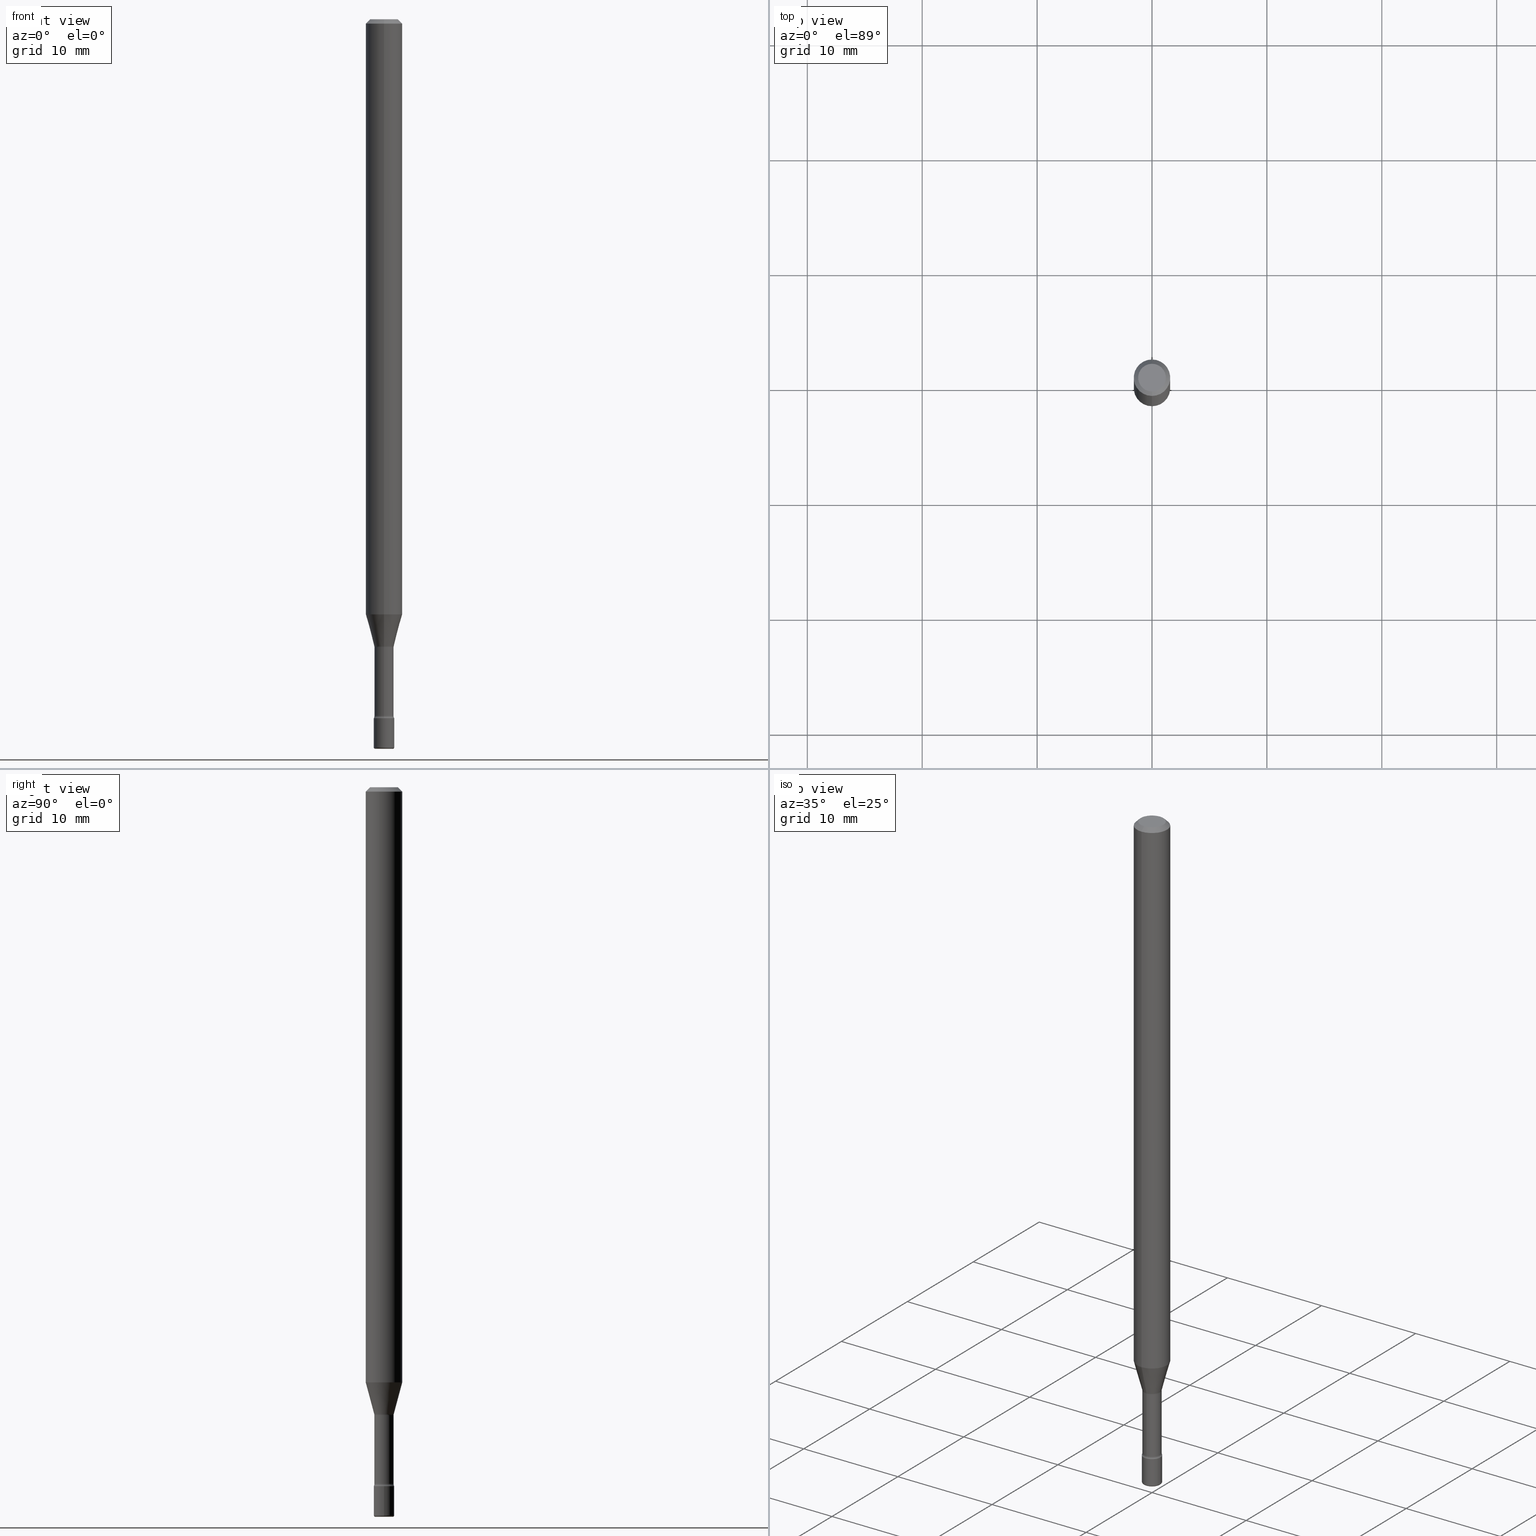
[diagram: canonical four-view strip — front | top / right | iso, engineering-drawing reading convention]
A machine part, canonical four-view strip (front | top / right | iso — engineering-drawing reading convention). The complete STEP part file that produces these views, byte-faithful:
ISO-10303-21;
HEADER;
FILE_DESCRIPTION (( 'STEP AP203' ),
    '1' );
FILE_NAME ('08932.STEP',
    '2024-03-06T20:11:24',
    ( '' ),
    ( '' ),
    'SwSTEP 2.0',
    'SolidWorks 2023',
    '' );
FILE_SCHEMA (( 'CONFIG_CONTROL_DESIGN' ));
ENDSEC;

DATA;
#1 = ORIENTED_EDGE ( 'NONE', *, *, #347, .T. ) ;
#2 = DIRECTION ( 'NONE',  ( -1.000000000000000000, 6.982962677686265922E-15, -4.876176775795935793E-29 ) ) ;
#3 = CIRCLE ( 'NONE', #239, 0.03289999999999999869 ) ;
#4 = AXIS2_PLACEMENT_3D ( 'NONE', #566, #52, #317 ) ;
#5 = DIRECTION ( 'NONE',  ( 1.000000000000000000, -6.982962677686265922E-15, 4.876176775795936353E-29 ) ) ;
#6 = DIRECTION ( 'NONE',  ( -6.982962677686265922E-15, -1.000000000000000000, 3.483106191921935554E-15 ) ) ;
#7 = ORIENTED_EDGE ( 'NONE', *, *, #525, .T. ) ;
#8 = MECHANICAL_CONTEXT ( 'NONE', #528, 'mechanical' ) ;
#9 = ADVANCED_FACE ( 'NONE', ( #275 ), #232, .T. ) ;
#10 = DATE_AND_TIME ( #238, #62 ) ;
#11 = AXIS2_PLACEMENT_3D ( 'NONE', #478, #143, #313 ) ;
#12 = AXIS2_PLACEMENT_3D ( 'NONE', #299, #218, #261 ) ;
#13 = TOROIDAL_SURFACE ( 'NONE', #269, 0.04790000000000001895, 0.01499999999999993006 ) ;
#14 = ORIENTED_EDGE ( 'NONE', *, *, #271, .F. ) ;
#15 = DATE_TIME_ROLE ( 'classification_date' ) ;
#16 = DIRECTION ( 'NONE',  ( 6.982962677686265922E-15, 1.000000000000000000, -3.483106191921935554E-15 ) ) ;
#17 = EDGE_CURVE ( 'NONE', #179, #512, #343, .T. ) ;
#18 = ORIENTED_EDGE ( 'NONE', *, *, #251, .F. ) ;
#19 = ORIENTED_EDGE ( 'NONE', *, *, #421, .F. ) ;
#20 = VERTEX_POINT ( 'NONE', #406 ) ;
#21 = CARTESIAN_POINT ( 'NONE',  ( 3.668042894305739311E-31, -5.237451588429154292E-17, -0.01500000000000002720 ) ) ;
#22 = FACE_OUTER_BOUND ( 'NONE', #456, .T. ) ;
#23 = AXIS2_PLACEMENT_3D ( 'NONE', #316, #447, #451 ) ;
#24 = AXIS2_PLACEMENT_3D ( 'NONE', #297, #293, #83 ) ;
#25 = EDGE_CURVE ( 'NONE', #490, #365, #488, .T. ) ;
#26 = ORIENTED_EDGE ( 'NONE', *, *, #538, .T. ) ;
#27 = ORIENTED_EDGE ( 'NONE', *, *, #244, .F. ) ;
#28 = DIRECTION ( 'NONE',  ( -6.982962677686266711E-15, -1.000000000000000000, 0.000000000000000000 ) ) ;
#29 = ORIENTED_EDGE ( 'NONE', *, *, #347, .F. ) ;
#30 = ORIENTED_EDGE ( 'NONE', *, *, #407, .F. ) ;
#31 = CARTESIAN_POINT ( 'NONE',  ( 5.837924017228111976E-29, -8.335737966594106856E-15, -2.387345589506696619 ) ) ;
#32 = AXIS2_PLACEMENT_3D ( 'NONE', #439, #570, #5 ) ;
#33 = VECTOR ( 'NONE', #396, 39.37007874015749564 ) ;
#34 = DIRECTION ( 'NONE',  ( -6.982962677686265133E-15, -1.000000000000000000, 3.491634392286094348E-15 ) ) ;
#35 = EDGE_CURVE ( 'NONE', #301, #20, #392, .T. ) ;
#36 = CARTESIAN_POINT ( 'NONE',  ( 6.113672015462840371E-29, -8.728703347107863365E-15, -2.499999999999999556 ) ) ;
#37 = PRODUCT ( '08932', '08932', '', ( #8 ) ) ;
#38 = DIRECTION ( 'NONE',  ( 6.982962677686265922E-15, 1.000000000000000000, -3.491634392286096321E-15 ) ) ;
#39 = ORIENTED_EDGE ( 'NONE', *, *, #370, .T. ) ;
#40 = EDGE_LOOP ( 'NONE', ( #350, #376, #305, #213 ) ) ;
#41 = AXIS2_PLACEMENT_3D ( 'NONE', #128, #220, #504 ) ;
#42 = LINE ( 'NONE', #56, #33 ) ;
#43 = EDGE_CURVE ( 'NONE', #442, #365, #118, .T. ) ;
#44 = ORIENTED_EDGE ( 'NONE', *, *, #35, .T. ) ;
#45 = ORIENTED_EDGE ( 'NONE', *, *, #520, .T. ) ;
#46 = LINE ( 'NONE', #349, #437 ) ;
#47 = ORIENTED_EDGE ( 'NONE', *, *, #340, .T. ) ;
#48 = CARTESIAN_POINT ( 'NONE',  ( 0.000000000000000000, 0.000000000000000000, 0.000000000000000000 ) ) ;
#49 = EDGE_LOOP ( 'NONE', ( #44, #494 ) ) ;
#50 = DIRECTION ( 'NONE',  ( 1.000000000000000000, -6.982962677686239889E-15, 4.883557194083103933E-29 ) ) ;
#51 = DIRECTION ( 'NONE',  ( -6.982962677686266711E-15, -1.000000000000000000, 0.000000000000000000 ) ) ;
#52 = DIRECTION ( 'NONE',  ( 1.000000000000000000, -7.105427357601001070E-15, 4.926317382906172649E-29 ) ) ;
#53 = DIRECTION ( 'NONE',  ( -6.982962677686265922E-15, -1.000000000000000000, 3.491634392286095926E-15 ) ) ;
#54 = TOROIDAL_SURFACE ( 'NONE', #374, 0.04789999999999999813, 0.01500000000000001853 ) ;
#55 = ADVANCED_FACE ( 'NONE', ( #182 ), #443, .T. ) ;
#56 = CARTESIAN_POINT ( 'NONE',  ( -2.333085523452721840E-16, -0.03341111260567147800, -2.148092501787273179 ) ) ;
#57 =( LENGTH_UNIT ( ) NAMED_UNIT ( * ) SI_UNIT ( $, .METRE. ) );
#58 = LENGTH_MEASURE_WITH_UNIT ( LENGTH_MEASURE( 0.02539999999999999897 ), #57 );
#59 = ADVANCED_FACE ( 'NONE', ( #400 ), #310, .F. ) ;
#60 = CARTESIAN_POINT ( 'NONE',  ( 3.668042894305739311E-31, -5.237451588429154292E-17, -0.01500000000000002720 ) ) ;
#61 = AXIS2_PLACEMENT_3D ( 'NONE', #492, #137, #272 ) ;
#62 = LOCAL_TIME ( 15, 11, 24.00000000000000000, #460 ) ;
#63 = APPROVAL_STATUS ( 'not_yet_approved' ) ;
#64 = CARTESIAN_POINT ( 'NONE',  ( 5.252863624994821305E-29, -7.500353657052325597E-15, -2.148092501787273179 ) ) ;
#65 = PLANE ( 'NONE',  #150 ) ;
#66 = VERTEX_POINT ( 'NONE', #92 ) ;
#67 = APPROVAL_ROLE ( '' ) ;
#68 = PLANE ( 'NONE',  #79 ) ;
#69 = AXIS2_PLACEMENT_3D ( 'NONE', #48, #441, #193 ) ;
#70 = AXIS2_PLACEMENT_3D ( 'NONE', #479, #481, #568 ) ;
#71 = FACE_OUTER_BOUND ( 'NONE', #307, .T. ) ;
#72 = ORIENTED_EDGE ( 'NONE', *, *, #262, .F. ) ;
#73 = CARTESIAN_POINT ( 'NONE',  ( -0.03000000000000000583, -8.498083119685618084E-15, -2.495000000000000107 ) ) ;
#74 = VERTEX_POINT ( 'NONE', #135 ) ;
#75 = ORIENTED_EDGE ( 'NONE', *, *, #43, .F. ) ;
#76 = DIRECTION ( 'NONE',  ( -2.445361929537154917E-29, 3.491634392286096321E-15, 1.000000000000000000 ) ) ;
#77 = EDGE_CURVE ( 'NONE', #480, #515, #380, .T. ) ;
#78 = ORIENTED_EDGE ( 'NONE', *, *, #43, .T. ) ;
#79 = AXIS2_PLACEMENT_3D ( 'NONE', #315, #388, #2 ) ;
#80 = AXIS2_PLACEMENT_3D ( 'NONE', #471, #76, #34 ) ;
#81 = CARTESIAN_POINT ( 'NONE',  ( -2.444036937189605549E-16, -0.03500000000000832306, -2.395000000000000018 ) ) ;
#82 = ORIENTED_EDGE ( 'NONE', *, *, #25, .T. ) ;
#83 = DIRECTION ( 'NONE',  ( 1.000000000000000000, -6.982962677686248567E-15, 0.000000000000000000 ) ) ;
#84 = EDGE_CURVE ( 'NONE', #551, #99, #101, .T. ) ;
#85 = PRODUCT_DEFINITION_SHAPE ( 'NONE', 'NONE',  #265 ) ;
#86 = CARTESIAN_POINT ( 'NONE',  ( -1.169113584055446105E-44, 1.669184350826100908E-30, 4.780733988912460139E-16 ) ) ;
#87 = EDGE_LOOP ( 'NONE', ( #472, #409, #452, #75 ) ) ;
#88 = AXIS2_PLACEMENT_3D ( 'NONE', #60, #242, #16 ) ;
#89 = VECTOR ( 'NONE', #445, 39.37007874015748143 ) ;
#90 = CIRCLE ( 'NONE', #70, 0.03341111260566397706 ) ;
#91 = DIRECTION ( 'NONE',  ( -2.445468806185136597E-29, 3.491481338843145583E-15, 1.000000000000000000 ) ) ;
#92 = CARTESIAN_POINT ( 'NONE',  ( -4.364351673553912750E-16, -0.06250000000000005551, -0.01499999999999981036 ) ) ;
#93 = ORIENTED_EDGE ( 'NONE', *, *, #538, .F. ) ;
#94 = CARTESIAN_POINT ( 'NONE',  ( 6.617399431615516844E-46, -9.463332413969183730E-32, -2.708191715859933263E-17 ) ) ;
#95 = CYLINDRICAL_SURFACE ( 'NONE', #527, 0.06250000000000000000 ) ;
#96 = ORIENTED_EDGE ( 'NONE', *, *, #303, .T. ) ;
#97 = ADVANCED_FACE ( 'NONE', ( #22 ), #68, .T. ) ;
#98 = DIRECTION ( 'NONE',  ( -6.982962677686266711E-15, -1.000000000000000000, 3.491481338843145583E-15 ) ) ;
#99 = VERTEX_POINT ( 'NONE', #192 ) ;
#100 = CARTESIAN_POINT ( 'NONE',  ( -4.364351673553419219E-16, -0.06250000000000714706, -2.039531296095961732 ) ) ;
#101 = CIRCLE ( 'NONE', #131, 0.06250000000000000000 ) ;
#102 = AXIS2_PLACEMENT_3D ( 'NONE', #532, #186, #229 ) ;
#103 = ADVANCED_FACE ( 'NONE', ( #521 ), #355, .T. ) ;
#104 = EDGE_LOOP ( 'NONE', ( #162, #206 ) ) ;
#105 = DATE_TIME_ROLE ( 'creation_date' ) ;
#106 = CARTESIAN_POINT ( 'NONE',  ( 5.856897790813402508E-29, -8.362097806529333416E-15, -2.395000000000000018 ) ) ;
#107 = ADVANCED_FACE ( 'NONE', ( #160 ), #249, .T. ) ;
#108 = PERSON ( 'UNSPECIFIED', 'UNSPECIFIED', 'UNSPECIFIED', ('UNSPECIFIED'), ('UNSPECIFIED'), ('UNSPECIFIED') ) ;
#109 = APPLICATION_PROTOCOL_DEFINITION ( 'international standard', 'config_control_design', 1994, #129 ) ;
#110 = APPROVAL ( #63, 'UNSPECIFIED' ) ;
#111 = AXIS2_PLACEMENT_3D ( 'NONE', #153, #357, #321 ) ;
#112 = APPROVAL_PERSON_ORGANIZATION ( #371, #397, #495 ) ;
#113 = PERSON_AND_ORGANIZATION_ROLE ( 'design_owner' ) ;
#114 = EDGE_LOOP ( 'NONE', ( #30, #420, #289, #470 ) ) ;
#115 =( NAMED_UNIT ( * ) PLANE_ANGLE_UNIT ( ) SI_UNIT ( $, .RADIAN. ) );
#116 = ORIENTED_EDGE ( 'NONE', *, *, #271, .T. ) ;
#117 = CARTESIAN_POINT ( 'NONE',  ( 5.252863624994821305E-29, -7.500353657052325597E-15, -2.148092501787273179 ) ) ;
#118 = CIRCLE ( 'NONE', #267, 0.03289999999999999869 ) ;
#119 = CIRCLE ( 'NONE', #319, 0.01499999999999992485 ) ;
#120 = ORIENTED_EDGE ( 'NONE', *, *, #185, .F. ) ;
#121 = LINE ( 'NONE', #342, #215 ) ;
#122 = CARTESIAN_POINT ( 'NONE',  ( 5.262357218587814766E-29, -7.513909179241206532E-15, -2.151974787463811101 ) ) ;
#123 = ORIENTED_EDGE ( 'NONE', *, *, #17, .T. ) ;
#124 = SHAPE_DEFINITION_REPRESENTATION ( #85, #533 ) ;
#125 = ORIENTED_EDGE ( 'NONE', *, *, #520, .F. ) ;
#126 = ADVANCED_FACE ( 'NONE', ( #260 ), #189, .F. ) ;
#127 = DIRECTION ( 'NONE',  ( 6.982962677686265922E-15, 1.000000000000000000, -3.483106191921935554E-15 ) ) ;
#128 = CARTESIAN_POINT ( 'NONE',  ( 5.837924017228111976E-29, -8.335737966594106856E-15, -2.387345589506696619 ) ) ;
#129 = APPLICATION_CONTEXT ( 'configuration controlled 3d designs of mechanical parts and assemblies' ) ;
#130 = LINE ( 'NONE', #302, #499 ) ;
#131 = AXIS2_PLACEMENT_3D ( 'NONE', #385, #561, #178 ) ;
#132 = DIRECTION ( 'NONE',  ( 1.000000000000000000, -6.982962677686299054E-15, 0.000000000000000000 ) ) ;
#133 = ADVANCED_FACE ( 'NONE', ( #183 ), #95, .T. ) ;
#134 = CYLINDRICAL_SURFACE ( 'NONE', #295, 0.03290000000000004726 ) ;
#135 = CARTESIAN_POINT ( 'NONE',  ( 3.407447217031688177E-16, 0.03341111260565647612, -2.148092501787273179 ) ) ;
#136 = LINE ( 'NONE', #233, #89 ) ;
#137 = DIRECTION ( 'NONE',  ( -2.445468806185136597E-29, 3.491481338843145583E-15, 1.000000000000000000 ) ) ;
#138 = ORIENTED_EDGE ( 'NONE', *, *, #463, .F. ) ;
#139 = CIRCLE ( 'NONE', #453, 0.06250000000000000000 ) ;
#140 = PRODUCT_DEFINITION_FORMATION_WITH_SPECIFIED_SOURCE ( 'ANY', '', #37, .NOT_KNOWN. ) ;
#141 = DIRECTION ( 'NONE',  ( -2.445468806185136597E-29, 3.491481338843145583E-15, 1.000000000000000000 ) ) ;
#142 = FACE_OUTER_BOUND ( 'NONE', #513, .T. ) ;
#143 = DIRECTION ( 'NONE',  ( -2.445361929537154917E-29, 3.491634392286096321E-15, 1.000000000000000000 ) ) ;
#144 = LINE ( 'NONE', #241, #171 ) ;
#145 = DIRECTION ( 'NONE',  ( -2.445361929537154917E-29, 3.491634392286096321E-15, 1.000000000000000000 ) ) ;
#146 = ORIENTED_EDGE ( 'NONE', *, *, #407, .T. ) ;
#147 = ORIENTED_EDGE ( 'NONE', *, *, #390, .T. ) ;
#148 = PERSON_AND_ORGANIZATION ( #108, #375 ) ;
#149 = CLOSED_SHELL ( 'NONE', ( #9, #468, #188, #97, #506, #211 ) ) ;
#150 = AXIS2_PLACEMENT_3D ( 'NONE', #246, #549, #503 ) ;
#151 = APPROVAL_PERSON_ORGANIZATION ( #418, #168, #455 ) ;
#152 = ADVANCED_FACE ( 'NONE', ( #446 ), #332, .T. ) ;
#153 = CARTESIAN_POINT ( 'NONE',  ( -3.344839122611194574E-16, -0.04790000000000750602, -2.151974787463811101 ) ) ;
#154 = PERSON_AND_ORGANIZATION_ROLE ( 'design_supplier' ) ;
#155 = ORIENTED_EDGE ( 'NONE', *, *, #390, .F. ) ;
#156 = APPROVAL_STATUS ( 'not_yet_approved' ) ;
#157 = ORIENTED_EDGE ( 'NONE', *, *, #309, .T. ) ;
#158 = PERSON_AND_ORGANIZATION ( #108, #375 ) ;
#159 = AXIS2_PLACEMENT_3D ( 'NONE', #369, #540, #417 ) ;
#160 = FACE_OUTER_BOUND ( 'NONE', #114, .T. ) ;
#161 = CC_DESIGN_SECURITY_CLASSIFICATION ( #353, ( #140 ) ) ;
#162 = ORIENTED_EDGE ( 'NONE', *, *, #287, .F. ) ;
#163 = APPROVAL_STATUS ( 'not_yet_approved' ) ;
#164 = ADVANCED_FACE ( 'NONE', ( #544 ), #507, .F. ) ;
#165 = FACE_OUTER_BOUND ( 'NONE', #175, .T. ) ;
#166 = COORDINATED_UNIVERSAL_TIME_OFFSET ( 5, 0, .BEHIND. ) ;
#167 = DIRECTION ( 'NONE',  ( -2.445468806185136597E-29, 3.491481338843145583E-15, 1.000000000000000000 ) ) ;
#168 = APPROVAL ( #163, 'UNSPECIFIED' ) ;
#169 = VERTEX_POINT ( 'NONE', #201 ) ;
#170 = CARTESIAN_POINT ( 'NONE',  ( -0.03500000000000000333, 2.486899575160350887E-16, -1.721627281589217108E-30 ) ) ;
#171 = VECTOR ( 'NONE', #433, 39.37007874015748143 ) ;
#172 = ORIENTED_EDGE ( 'NONE', *, *, #77, .F. ) ;
#173 = AXIS2_PLACEMENT_3D ( 'NONE', #187, #91, #50 ) ;
#174 = EDGE_CURVE ( 'NONE', #20, #301, #325, .T. ) ;
#175 = EDGE_LOOP ( 'NONE', ( #14, #39, #248, #235 ) ) ;
#176 = CARTESIAN_POINT ( 'NONE',  ( 0.03500000000000000333, -8.606501500248353382E-15, -2.395000000000000018 ) ) ;
#177 = FACE_OUTER_BOUND ( 'NONE', #501, .T. ) ;
#178 = DIRECTION ( 'NONE',  ( -6.982962677686265922E-15, -1.000000000000000000, 4.370956789862821150E-15 ) ) ;
#179 = VERTEX_POINT ( 'NONE', #505 ) ;
#180 = DIRECTION ( 'NONE',  ( -2.445468806185136597E-29, 3.491481338843145583E-15, 1.000000000000000000 ) ) ;
#181 = AXIS2_PLACEMENT_3D ( 'NONE', #195, #360, #534 ) ;
#182 = FACE_OUTER_BOUND ( 'NONE', #558, .T. ) ;
#183 = FACE_OUTER_BOUND ( 'NONE', #329, .T. ) ;
#184 = DIRECTION ( 'NONE',  ( -2.445361929537154917E-29, 3.491634392286096321E-15, 1.000000000000000000 ) ) ;
#185 = EDGE_CURVE ( 'NONE', #365, #442, #3, .T. ) ;
#186 = DIRECTION ( 'NONE',  ( 1.000000000000000000, -7.105427357601001070E-15, 4.926317382906172649E-29 ) ) ;
#187 = CARTESIAN_POINT ( 'NONE',  ( 6.101444671431915719E-29, -8.711245940413648329E-15, -2.495000000000000107 ) ) ;
#188 = ADVANCED_FACE ( 'NONE', ( #377 ), #65, .T. ) ;
#189 = TOROIDAL_SURFACE ( 'NONE', #23, 0.04790000000000001895, 0.01499999999999993006 ) ;
#190 = LOCAL_TIME ( 15, 11, 24.00000000000000000, #166 ) ;
#191 = FACE_OUTER_BOUND ( 'NONE', #336, .T. ) ;
#192 = CARTESIAN_POINT ( 'NONE',  ( 4.440892098501122158E-16, 0.06249999999999284600, -2.039531296095962176 ) ) ;
#193 = DIRECTION ( 'NONE',  ( 1.000000000000000000, -6.982962677686265922E-15, 4.876176775795936353E-29 ) ) ;
#194 = DIRECTION ( 'NONE',  ( -2.445361929537154917E-29, 3.491634392286096321E-15, 1.000000000000000000 ) ) ;
#195 = CARTESIAN_POINT ( 'NONE',  ( 6.617399431615516844E-46, -9.463332413969183730E-32, -2.708191715859933263E-17 ) ) ;
#196 = APPROVAL_DATE_TIME ( #449, #110 ) ;
#197 = ADVANCED_FACE ( 'NONE', ( #462 ), #278, .T. ) ;
#198 = CARTESIAN_POINT ( 'NONE',  ( 5.262587214439640065E-29, -7.513579812090841259E-15, -2.151974787463811101 ) ) ;
#199 = PRODUCT_RELATED_PRODUCT_CATEGORY ( 'detail', '', ( #37 ) ) ;
#200 = DIRECTION ( 'NONE',  ( 0.000000000000000000, 0.000000000000000000, 1.000000000000000000 ) ) ;
#201 = CARTESIAN_POINT ( 'NONE',  ( 2.486899575160932672E-16, 0.03499999999999160033, -2.395000000000000018 ) ) ;
#202 = CIRCLE ( 'NONE', #519, 0.06250000000000000000 ) ;
#203 = PERSON_AND_ORGANIZATION ( #108, #375 ) ;
#204 = ORIENTED_EDGE ( 'NONE', *, *, #303, .F. ) ;
#205 = ORIENTED_EDGE ( 'NONE', *, *, #185, .T. ) ;
#206 = ORIENTED_EDGE ( 'NONE', *, *, #525, .F. ) ;
#207 = EDGE_CURVE ( 'NONE', #99, #339, #320, .T. ) ;
#208 = VECTOR ( 'NONE', #308, 39.37007874015748143 ) ;
#209 = EDGE_LOOP ( 'NONE', ( #125, #138, #82, #205 ) ) ;
#210 = CYLINDRICAL_SURFACE ( 'NONE', #80, 0.03290000000000004726 ) ;
#211 = ADVANCED_FACE ( 'NONE', ( #165 ), #401, .T. ) ;
#212 = ORIENTED_EDGE ( 'NONE', *, *, #383, .T. ) ;
#213 = ORIENTED_EDGE ( 'NONE', *, *, #489, .F. ) ;
#214 = DIRECTION ( 'NONE',  ( -2.445361929537154917E-29, 3.491634392286096321E-15, 1.000000000000000000 ) ) ;
#215 = VECTOR ( 'NONE', #432, 39.37007874015748143 ) ;
#216 = LOCAL_TIME ( 15, 11, 24.00000000000000000, #361 ) ;
#217 = DIRECTION ( 'NONE',  ( -6.982962677686265133E-15, -1.000000000000000000, 3.491634392286096321E-15 ) ) ;
#218 = DIRECTION ( 'NONE',  ( -2.445361929537154917E-29, 3.491634392286096321E-15, 1.000000000000000000 ) ) ;
#219 = EDGE_CURVE ( 'NONE', #512, #66, #144, .T. ) ;
#220 = DIRECTION ( 'NONE',  ( -2.445361929537154917E-29, 3.491634392286096321E-15, 1.000000000000000000 ) ) ;
#221 = AXIS2_PLACEMENT_3D ( 'NONE', #554, #180, #330 ) ;
#222 = AXIS2_PLACEMENT_3D ( 'NONE', #438, #270, #487 ) ;
#223 = CC_DESIGN_PERSON_AND_ORGANIZATION_ASSIGNMENT ( #546, #323, ( #265 ) ) ;
#224 = CARTESIAN_POINT ( 'NONE',  ( 5.838179168722291637E-29, -8.335372575132119928E-15, -2.387345589506696619 ) ) ;
#225 = ORIENTED_EDGE ( 'NONE', *, *, #17, .F. ) ;
#226 = LINE ( 'NONE', #394, #412 ) ;
#227 = ADVANCED_FACE ( 'NONE', ( #177 ), #563, .F. ) ;
#228 = CARTESIAN_POINT ( 'NONE',  ( 5.262357218587814766E-29, -7.513909179241206532E-15, -2.151974787463811101 ) ) ;
#229 = DIRECTION ( 'NONE',  ( 7.105427357601001859E-15, 1.000000000000000000, 0.000000000000000000 ) ) ;
#230 = CIRCLE ( 'NONE', #547, 0.03341111260566397706 ) ;
#231 = CARTESIAN_POINT ( 'NONE',  ( 2.337685600651315248E-16, 0.03289999999999249081, -2.151974787463811101 ) ) ;
#232 = CYLINDRICAL_SURFACE ( 'NONE', #69, 0.03500000000000000333 ) ;
#233 = CARTESIAN_POINT ( 'NONE',  ( -4.364351673553916201E-16, -0.06250000000000000000, 6.963005484091270833E-16 ) ) ;
#234 = ORIENTED_EDGE ( 'NONE', *, *, #477, .F. ) ;
#235 = ORIENTED_EDGE ( 'NONE', *, *, #174, .F. ) ;
#236 = UNCERTAINTY_MEASURE_WITH_UNIT (LENGTH_MEASURE( 1.000000000000000082E-05 ), #245, 'distance_accuracy_value', 'NONE');
#237 = DIRECTION ( 'NONE',  ( -2.445468806185136597E-29, 3.491481338843145583E-15, 1.000000000000000000 ) ) ;
#238 = CALENDAR_DATE ( 2024, 6, 3 ) ;
#239 = AXIS2_PLACEMENT_3D ( 'NONE', #122, #243, #250 ) ;
#240 = CIRCLE ( 'NONE', #4, 0.01500000000000001853 ) ;
#241 = CARTESIAN_POINT ( 'NONE',  ( -4.287811248607203282E-16, -0.06250000000000005551, -0.01499999999999981036 ) ) ;
#242 = DIRECTION ( 'NONE',  ( 2.445361929537154917E-29, -3.491634392286096321E-15, -1.000000000000000000 ) ) ;
#243 = DIRECTION ( 'NONE',  ( -2.445361929537154917E-29, 3.491634392286096321E-15, 1.000000000000000000 ) ) ;
#244 = EDGE_CURVE ( 'NONE', #480, #284, #556, .T. ) ;
#245 =( CONVERSION_BASED_UNIT ( 'INCH', #58 ) LENGTH_UNIT ( ) NAMED_UNIT ( #300 ) );
#246 = CARTESIAN_POINT ( 'NONE',  ( 5.856897790813402508E-29, -8.362097806529333416E-15, -2.395000000000000018 ) ) ;
#247 = ORIENTED_EDGE ( 'NONE', *, *, #458, .T. ) ;
#248 = ORIENTED_EDGE ( 'NONE', *, *, #562, .T. ) ;
#249 = CONICAL_SURFACE ( 'NONE', #565, 0.06250000000000000000, 0.7853981633974485010 ) ;
#250 = DIRECTION ( 'NONE',  ( -6.982962677686266711E-15, -1.000000000000000000, 0.000000000000000000 ) ) ;
#251 = EDGE_CURVE ( 'NONE', #508, #457, #541, .T. ) ;
#252 = CARTESIAN_POINT ( 'NONE',  ( 6.101444671431915719E-29, -8.711245940413648329E-15, -2.495000000000000107 ) ) ;
#253 = EDGE_LOOP ( 'NONE', ( #410, #116, #531, #539 ) ) ;
#254 = LINE ( 'NONE', #170, #474 ) ;
#255 = EDGE_LOOP ( 'NONE', ( #72, #288, #7, #155 ) ) ;
#256 = CARTESIAN_POINT ( 'NONE',  ( -3.344839122611139354E-16, -0.04790000000000835256, -2.387345589506696175 ) ) ;
#257 = AXIS2_PLACEMENT_3D ( 'NONE', #36, #167, #132 ) ;
#258 = CIRCLE ( 'NONE', #102, 0.01499999999999992485 ) ;
#259 = APPROVAL_DATE_TIME ( #473, #397 ) ;
#260 = FACE_OUTER_BOUND ( 'NONE', #509, .T. ) ;
#261 = DIRECTION ( 'NONE',  ( -6.982962677686265922E-15, -1.000000000000000000, 0.000000000000000000 ) ) ;
#262 = EDGE_CURVE ( 'NONE', #457, #508, #268, .T. ) ;
#263 = ORIENTED_EDGE ( 'NONE', *, *, #25, .F. ) ;
#264 = DIRECTION ( 'NONE',  ( 7.105427357601001859E-15, 1.000000000000000000, -3.491481338843145583E-15 ) ) ;
#265 = PRODUCT_DEFINITION ( 'UNKNOWN', '', #140, #283 ) ;
#266 = DIRECTION ( 'NONE',  ( -2.445361929537154917E-29, 3.491634392286096321E-15, 1.000000000000000000 ) ) ;
#267 = AXIS2_PLACEMENT_3D ( 'NONE', #228, #395, #51 ) ;
#268 = CIRCLE ( 'NONE', #41, 0.03290000000000008890 ) ;
#269 = AXIS2_PLACEMENT_3D ( 'NONE', #224, #145, #571 ) ;
#270 = DIRECTION ( 'NONE',  ( -2.445361929537154917E-29, 3.491634392286096321E-15, 1.000000000000000000 ) ) ;
#271 = EDGE_CURVE ( 'NONE', #298, #20, #254, .T. ) ;
#272 = DIRECTION ( 'NONE',  ( 1.000000000000000000, -6.982962677686276966E-15, 0.000000000000000000 ) ) ;
#273 = CARTESIAN_POINT ( 'NONE',  ( 3.668042894305739311E-31, -5.237451588429154292E-17, -0.01500000000000002720 ) ) ;
#274 = CC_DESIGN_PERSON_AND_ORGANIZATION_ASSIGNMENT ( #148, #154, ( #140 ) ) ;
#275 = FACE_OUTER_BOUND ( 'NONE', #253, .T. ) ;
#276 = CARTESIAN_POINT ( 'NONE',  ( 2.412292587906125932E-16, 0.03289999999999175528, -2.387345589506696619 ) ) ;
#277 = CARTESIAN_POINT ( 'NONE',  ( -1.169113584055446105E-44, 1.669184350826100908E-30, 4.780733988912460139E-16 ) ) ;
#278 = CONICAL_SURFACE ( 'NONE', #411, 0.03341111260566397706, 0.2617993877991501850 ) ;
#279 = TOROIDAL_SURFACE ( 'NONE', #173, 0.03000000000000000583, 0.004999999999999767651 ) ;
#280 = FACE_OUTER_BOUND ( 'NONE', #255, .T. ) ;
#281 = EDGE_CURVE ( 'NONE', #515, #298, #366, .T. ) ;
#282 = APPLICATION_PROTOCOL_DEFINITION ( 'international standard', 'config_control_design', 1994, #528 ) ;
#283 = DESIGN_CONTEXT ( 'detailed design', #129, 'design' ) ;
#284 = VERTEX_POINT ( 'NONE', #511 ) ;
#285 = AXIS2_PLACEMENT_3D ( 'NONE', #198, #364, #537 ) ;
#286 = LOCAL_TIME ( 15, 11, 24.00000000000000000, #328 ) ;
#287 = EDGE_CURVE ( 'NONE', #404, #169, #517, .T. ) ;
#288 = ORIENTED_EDGE ( 'NONE', *, *, #477, .T. ) ;
#289 = ORIENTED_EDGE ( 'NONE', *, *, #448, .T. ) ;
#290 = DIRECTION ( 'NONE',  ( -2.445361929537154917E-29, 3.491634392286096321E-15, 1.000000000000000000 ) ) ;
#291 = ORIENTED_EDGE ( 'NONE', *, *, #421, .T. ) ;
#292 = CARTESIAN_POINT ( 'NONE',  ( 0.000000000000000000, 0.000000000000000000, 0.000000000000000000 ) ) ;
#293 = DIRECTION ( 'NONE',  ( -2.445468806185136597E-29, 3.491481338843145583E-15, 1.000000000000000000 ) ) ;
#294 = AXIS2_PLACEMENT_3D ( 'NONE', #31, #214, #427 ) ;
#295 = AXIS2_PLACEMENT_3D ( 'NONE', #86, #266, #435 ) ;
#296 = ORIENTED_EDGE ( 'NONE', *, *, #463, .T. ) ;
#297 = CARTESIAN_POINT ( 'NONE',  ( 6.101444671431915719E-29, -8.711245940413648329E-15, -2.495000000000000107 ) ) ;
#298 = VERTEX_POINT ( 'NONE', #467 ) ;
#299 = CARTESIAN_POINT ( 'NONE',  ( 5.856641821241486538E-29, -8.362464369525200210E-15, -2.395000000000000018 ) ) ;
#300 = DIMENSIONAL_EXPONENTS ( 1.000000000000000000, 0.000000000000000000, 0.000000000000000000, 0.000000000000000000, 0.000000000000000000, 0.000000000000000000, 0.000000000000000000 ) ;
#301 = VERTEX_POINT ( 'NONE', #176 ) ;
#302 = CARTESIAN_POINT ( 'NONE',  ( -2.297394720958784485E-16, -0.03290000000000004726, 5.929481703974587272E-16 ) ) ;
#303 = EDGE_CURVE ( 'NONE', #99, #551, #139, .T. ) ;
#304 = CIRCLE ( 'NONE', #24, 0.03500000000000000333 ) ;
#305 = ORIENTED_EDGE ( 'NONE', *, *, #448, .F. ) ;
#306 = FACE_OUTER_BOUND ( 'NONE', #402, .T. ) ;
#307 = EDGE_LOOP ( 'NONE', ( #331, #247, #120, #373 ) ) ;
#308 = DIRECTION ( 'NONE',  ( -2.445361929537154917E-29, 3.491634392286096321E-15, 1.000000000000000000 ) ) ;
#309 = EDGE_CURVE ( 'NONE', #179, #339, #121, .T. ) ;
#310 = PLANE ( 'NONE',  #497 ) ;
#311 = DIRECTION ( 'NONE',  ( -2.445361929537154917E-29, 3.491634392286096321E-15, 1.000000000000000000 ) ) ;
#312 = CARTESIAN_POINT ( 'NONE',  ( 3.668042894305739311E-31, -5.237451588429154292E-17, -0.01500000000000002720 ) ) ;
#313 = DIRECTION ( 'NONE',  ( -6.982962677686266711E-15, -1.000000000000000000, 0.000000000000000000 ) ) ;
#314 = CARTESIAN_POINT ( 'NONE',  ( 6.101444671431915719E-29, -8.711245940413648329E-15, -2.495000000000000107 ) ) ;
#315 = CARTESIAN_POINT ( 'NONE',  ( 2.094888803306491578E-16, 0.02999999999999127670, -2.500000000000000000 ) ) ;
#316 = CARTESIAN_POINT ( 'NONE',  ( 5.838179168722291637E-29, -8.335372575132119928E-15, -2.387345589506696619 ) ) ;
#317 = DIRECTION ( 'NONE',  ( 7.105427357601001859E-15, 1.000000000000000000, 0.000000000000000000 ) ) ;
#318 = AXIS2_PLACEMENT_3D ( 'NONE', #106, #237, #408 ) ;
#319 = AXIS2_PLACEMENT_3D ( 'NONE', #256, #430, #560 ) ;
#320 = LINE ( 'NONE', #550, #465 ) ;
#321 = DIRECTION ( 'NONE',  ( -6.982962677686267499E-15, -1.000000000000000000, 0.000000000000000000 ) ) ;
#322 = CALENDAR_DATE ( 2024, 6, 3 ) ;
#323 = PERSON_AND_ORGANIZATION_ROLE ( 'creator' ) ;
#324 = DIRECTION ( 'NONE',  ( 1.000000000000000000, 0.000000000000000000, 0.000000000000000000 ) ) ;
#325 = CIRCLE ( 'NONE', #318, 0.03500000000000000333 ) ;
#326 = CIRCLE ( 'NONE', #222, 0.03500000000000000333 ) ;
#327 = ORIENTED_EDGE ( 'NONE', *, *, #287, .T. ) ;
#328 = COORDINATED_UNIVERSAL_TIME_OFFSET ( 5, 0, .BEHIND. ) ;
#329 = EDGE_LOOP ( 'NONE', ( #348, #96, #425, #93 ) ) ;
#330 = DIRECTION ( 'NONE',  ( 1.000000000000000000, -6.982962677686299054E-15, 0.000000000000000000 ) ) ;
#331 = ORIENTED_EDGE ( 'NONE', *, *, #251, .T. ) ;
#332 = CONICAL_SURFACE ( 'NONE', #88, 0.06250000000000000000, 0.7853981633974485010 ) ;
#333 = DIRECTION ( 'NONE',  ( -2.445361929537154917E-29, 3.491634392286096321E-15, 1.000000000000000000 ) ) ;
#334 = CIRCLE ( 'NONE', #367, 0.06250000000000000000 ) ;
#335 = CIRCLE ( 'NONE', #431, 0.004999999999999767651 ) ;
#336 = EDGE_LOOP ( 'NONE', ( #337, #212, #564, #172 ) ) ;
#337 = ORIENTED_EDGE ( 'NONE', *, *, #244, .T. ) ;
#338 = CARTESIAN_POINT ( 'NONE',  ( 4.987392185572635423E-29, -7.121297617592497891E-15, -2.039531296095961732 ) ) ;
#339 = VERTEX_POINT ( 'NONE', #518 ) ;
#340 = EDGE_CURVE ( 'NONE', #284, #480, #352, .T. ) ;
#341 = ORIENTED_EDGE ( 'NONE', *, *, #370, .F. ) ;
#342 = CARTESIAN_POINT ( 'NONE',  ( 4.364351673553919652E-16, 0.06249999999999995143, -0.01500000000000024578 ) ) ;
#343 = CIRCLE ( 'NONE', #181, 0.04749999999999998668 ) ;
#344 = AXIS2_PLACEMENT_3D ( 'NONE', #356, #98, #545 ) ;
#345 = AXIS2_PLACEMENT_3D ( 'NONE', #314, #141, #440 ) ;
#346 = DIRECTION ( 'NONE',  ( -6.982962677686265922E-15, -1.000000000000000000, 3.483106191921935554E-15 ) ) ;
#347 = EDGE_CURVE ( 'NONE', #74, #490, #230, .T. ) ;
#348 = ORIENTED_EDGE ( 'NONE', *, *, #207, .F. ) ;
#349 = CARTESIAN_POINT ( 'NONE',  ( 0.03500000000000000333, -2.444036937190193250E-16, 1.706661871528577808E-30 ) ) ;
#350 = ORIENTED_EDGE ( 'NONE', *, *, #84, .T. ) ;
#351 = CARTESIAN_POINT ( 'NONE',  ( -3.773273898774339776E-16, -0.04749999999999998668, 1.387707164749902092E-16 ) ) ;
#352 = CIRCLE ( 'NONE', #257, 0.03000000000000000583 ) ;
#353 = SECURITY_CLASSIFICATION ( '', '', #500 ) ;
#354 = CARTESIAN_POINT ( 'NONE',  ( 0.03000000000000000583, -8.938192227438451682E-15, -2.499999999999999556 ) ) ;
#355 = CYLINDRICAL_SURFACE ( 'NONE', #159, 0.06250000000000000000 ) ;
#356 = CARTESIAN_POINT ( 'NONE',  ( 0.03000000000000000583, -8.920734820744236646E-15, -2.495000000000000107 ) ) ;
#357 = DIRECTION ( 'NONE',  ( -1.000000000000000000, 6.982962677686265922E-15, -4.883557194083112340E-29 ) ) ;
#358 = CARTESIAN_POINT ( 'NONE',  ( 2.337685600650732477E-16, 0.03290000000000004726, 3.631986273850333500E-16 ) ) ;
#359 = ADVANCED_FACE ( 'NONE', ( #306 ), #54, .F. ) ;
#360 = DIRECTION ( 'NONE',  ( -2.445361929537154917E-29, 3.491634392286096321E-15, 1.000000000000000000 ) ) ;
#361 = COORDINATED_UNIVERSAL_TIME_OFFSET ( 5, 0, .BEHIND. ) ;
#362 = DIRECTION ( 'NONE',  ( -2.445361929537154917E-29, 3.491634392286096321E-15, 1.000000000000000000 ) ) ;
#363 = CC_DESIGN_PERSON_AND_ORGANIZATION_ASSIGNMENT ( #548, #113, ( #37 ) ) ;
#364 = DIRECTION ( 'NONE',  ( -2.445361929537154917E-29, 3.491634392286096321E-15, 1.000000000000000000 ) ) ;
#365 = VERTEX_POINT ( 'NONE', #476 ) ;
#366 = CIRCLE ( 'NONE', #436, 0.03500000000000000333 ) ;
#367 = AXIS2_PLACEMENT_3D ( 'NONE', #312, #184, #346 ) ;
#368 = PERSON_AND_ORGANIZATION ( #108, #375 ) ;
#369 = CARTESIAN_POINT ( 'NONE',  ( -1.169113584055446105E-44, 1.669184350826100908E-30, 4.780733988912460139E-16 ) ) ;
#370 = EDGE_CURVE ( 'NONE', #298, #515, #304, .T. ) ;
#371 = PERSON_AND_ORGANIZATION ( #108, #375 ) ;
#372 = APPROVAL_DATE_TIME ( #10, #168 ) ;
#373 = ORIENTED_EDGE ( 'NONE', *, *, #399, .F. ) ;
#374 = AXIS2_PLACEMENT_3D ( 'NONE', #469, #333, #217 ) ;
#375 = ORGANIZATION ( 'UNSPECIFIED', 'UNSPECIFIED', '' ) ;
#376 = ORIENTED_EDGE ( 'NONE', *, *, #207, .T. ) ;
#377 = FACE_OUTER_BOUND ( 'NONE', #49, .T. ) ;
#378 = DIRECTION ( 'NONE',  ( -2.445361929537154917E-29, 3.491634392286096321E-15, 1.000000000000000000 ) ) ;
#379 = CARTESIAN_POINT ( 'NONE',  ( 3.316907271900975110E-16, 0.04749999999999998668, 5.964310723273385275E-17 ) ) ;
#380 = CIRCLE ( 'NONE', #344, 0.004999999999999767651 ) ;
#381 = DIRECTION ( 'NONE',  ( -2.445468806185136597E-29, 3.491481338843145583E-15, 1.000000000000000000 ) ) ;
#382 = CC_DESIGN_APPROVAL ( #168, ( #265 ) ) ;
#383 = EDGE_CURVE ( 'NONE', #284, #298, #335, .T. ) ;
#384 = DIRECTION ( 'NONE',  ( -6.982962677686265922E-15, -1.000000000000000000, 4.370956789862821150E-15 ) ) ;
#385 = CARTESIAN_POINT ( 'NONE',  ( 4.987392185572635423E-29, -7.121297617592497891E-15, -2.039531296095961732 ) ) ;
#386 = ADVANCED_FACE ( 'NONE', ( #71 ), #210, .T. ) ;
#387 = DIRECTION ( 'NONE',  ( -2.445361929537154917E-29, 3.491634392286096321E-15, 1.000000000000000000 ) ) ;
#388 = DIRECTION ( 'NONE',  ( 2.438088387897960049E-29, -3.491481338843145188E-15, -1.000000000000000000 ) ) ;
#389 = DIRECTION ( 'NONE',  ( -1.000000000000000000, 7.105427357601061812E-15, 0.000000000000000000 ) ) ;
#390 = EDGE_CURVE ( 'NONE', #508, #404, #119, .T. ) ;
#391 = CLOSED_SHELL ( 'NONE', ( #359, #386, #428, #107, #103, #55, #197, #133, #152, #227, #59, #126, #552, #164 ) ) ;
#392 = CIRCLE ( 'NONE', #61, 0.03500000000000000333 ) ;
#393 = LINE ( 'NONE', #358, #208 ) ;
#394 = CARTESIAN_POINT ( 'NONE',  ( 2.374002335562250251E-16, 0.03341111260565647612, -2.148092501787273179 ) ) ;
#395 = DIRECTION ( 'NONE',  ( -2.445361929537154917E-29, 3.491634392286096321E-15, 1.000000000000000000 ) ) ;
#396 = DIRECTION ( 'NONE',  ( -1.807323732225329350E-15, -0.2588190451025180194, 0.9659258262890689783 ) ) ;
#397 = APPROVAL ( #156, 'UNSPECIFIED' ) ;
#398 = CC_DESIGN_APPROVAL ( #397, ( #353 ) ) ;
#399 = EDGE_CURVE ( 'NONE', #508, #365, #130, .T. ) ;
#400 = FACE_OUTER_BOUND ( 'NONE', #104, .T. ) ;
#401 = CYLINDRICAL_SURFACE ( 'NONE', #32, 0.03500000000000000333 ) ;
#402 = EDGE_LOOP ( 'NONE', ( #29, #45, #78, #263 ) ) ;
#403 = CARTESIAN_POINT ( 'NONE',  ( 0.03499999999999988537, -8.955649634132666717E-15, -2.495000000000000107 ) ) ;
#404 = VERTEX_POINT ( 'NONE', #81 ) ;
#405 = CALENDAR_DATE ( 2024, 6, 3 ) ;
#406 = CARTESIAN_POINT ( 'NONE',  ( -0.03500000000000000333, -8.287981915955455587E-15, -2.395000000000000018 ) ) ;
#407 = EDGE_CURVE ( 'NONE', #512, #179, #444, .T. ) ;
#408 = DIRECTION ( 'NONE',  ( 1.000000000000000000, -6.982962677686276966E-15, 0.000000000000000000 ) ) ;
#409 = ORIENTED_EDGE ( 'NONE', *, *, #262, .T. ) ;
#410 = ORIENTED_EDGE ( 'NONE', *, *, #281, .T. ) ;
#411 = AXIS2_PLACEMENT_3D ( 'NONE', #64, #290, #459 ) ;
#412 = VECTOR ( 'NONE', #483, 39.37007874015748143 ) ;
#413 = MANIFOLD_SOLID_BREP ( 'Body-Move/Copy2[2]', #391 ) ;
#414 = DATE_AND_TIME ( #322, #567 ) ;
#415 = MANIFOLD_SOLID_BREP ( 'Body-Move/Copy2[1]', #149 ) ;
#416 = CC_DESIGN_DATE_AND_TIME_ASSIGNMENT ( #536, #105, ( #265 ) ) ;
#417 = DIRECTION ( 'NONE',  ( -6.982962677686265922E-15, -1.000000000000000000, 3.491634392286095926E-15 ) ) ;
#418 = PERSON_AND_ORGANIZATION ( #108, #375 ) ;
#419 =( NAMED_UNIT ( * ) SI_UNIT ( $, .STERADIAN. ) SOLID_ANGLE_UNIT ( ) );
#420 = ORIENTED_EDGE ( 'NONE', *, *, #219, .T. ) ;
#421 = EDGE_CURVE ( 'NONE', #490, #551, #42, .T. ) ;
#422 = TOROIDAL_SURFACE ( 'NONE', #345, 0.03000000000000000583, 0.004999999999999767651 ) ;
#423 = DIRECTION ( 'NONE',  ( 1.000000000000000000, -6.982962677686248567E-15, 0.000000000000000000 ) ) ;
#424 = ORIENTED_EDGE ( 'NONE', *, *, #569, .F. ) ;
#425 = ORIENTED_EDGE ( 'NONE', *, *, #489, .T. ) ;
#426 = DIRECTION ( 'NONE',  ( 2.445361929537154917E-29, -3.491634392286096321E-15, -1.000000000000000000 ) ) ;
#427 = DIRECTION ( 'NONE',  ( -6.982962677686266711E-15, -1.000000000000000000, 0.000000000000000000 ) ) ;
#428 = ADVANCED_FACE ( 'NONE', ( #280 ), #13, .F. ) ;
#429 = AXIS2_PLACEMENT_3D ( 'NONE', #379, #514, #38 ) ;
#430 = DIRECTION ( 'NONE',  ( -1.000000000000000000, 6.982962677686265922E-15, -4.883557194083112340E-29 ) ) ;
#431 = AXIS2_PLACEMENT_3D ( 'NONE', #73, #264, #389 ) ;
#432 = DIRECTION ( 'NONE',  ( 4.937700262164548831E-15, 0.7071067811865452413, -0.7071067811865497932 ) ) ;
#433 = DIRECTION ( 'NONE',  ( -4.851104656540965064E-15, -0.7071067811865501263, -0.7071067811865449082 ) ) ;
#434 = ORIENTED_EDGE ( 'NONE', *, *, #383, .F. ) ;
#435 = DIRECTION ( 'NONE',  ( -6.982962677686265133E-15, -1.000000000000000000, 3.491634392286094348E-15 ) ) ;
#436 = AXIS2_PLACEMENT_3D ( 'NONE', #252, #381, #423 ) ;
#437 = VECTOR ( 'NONE', #524, 39.37007874015748143 ) ;
#438 = CARTESIAN_POINT ( 'NONE',  ( 5.856641821241486538E-29, -8.362464369525200210E-15, -2.395000000000000018 ) ) ;
#439 = CARTESIAN_POINT ( 'NONE',  ( 0.000000000000000000, 0.000000000000000000, 0.000000000000000000 ) ) ;
#440 = DIRECTION ( 'NONE',  ( 1.000000000000000000, -6.982962677686239889E-15, 4.883557194083103933E-29 ) ) ;
#441 = DIRECTION ( 'NONE',  ( -2.445468806185136597E-29, 3.491481338843145583E-15, 1.000000000000000000 ) ) ;
#442 = VERTEX_POINT ( 'NONE', #231 ) ;
#443 = CONICAL_SURFACE ( 'NONE', #11, 0.03341111260566397706, 0.2617993877991501850 ) ;
#444 = CIRCLE ( 'NONE', #510, 0.04749999999999998668 ) ;
#445 = DIRECTION ( 'NONE',  ( -2.445361929537154917E-29, 3.491634392286096321E-15, 1.000000000000000000 ) ) ;
#446 = FACE_OUTER_BOUND ( 'NONE', #542, .T. ) ;
#447 = DIRECTION ( 'NONE',  ( -2.445361929537154917E-29, 3.491634392286096321E-15, 1.000000000000000000 ) ) ;
#448 = EDGE_CURVE ( 'NONE', #66, #339, #202, .T. ) ;
#449 = DATE_AND_TIME ( #405, #216 ) ;
#450 = PERSON_AND_ORGANIZATION_ROLE ( 'creator' ) ;
#451 = DIRECTION ( 'NONE',  ( -6.982962677686265922E-15, -1.000000000000000000, 3.491634392286096321E-15 ) ) ;
#452 = ORIENTED_EDGE ( 'NONE', *, *, #399, .T. ) ;
#453 = AXIS2_PLACEMENT_3D ( 'NONE', #338, #387, #384 ) ;
#454 = APPROVAL_PERSON_ORGANIZATION ( #203, #110, #67 ) ;
#455 = APPROVAL_ROLE ( '' ) ;
#456 = EDGE_LOOP ( 'NONE', ( #27, #461 ) ) ;
#457 = VERTEX_POINT ( 'NONE', #276 ) ;
#458 = EDGE_CURVE ( 'NONE', #457, #442, #393, .T. ) ;
#459 = DIRECTION ( 'NONE',  ( -6.982962677686266711E-15, -1.000000000000000000, 0.000000000000000000 ) ) ;
#460 = COORDINATED_UNIVERSAL_TIME_OFFSET ( 5, 0, .BEHIND. ) ;
#461 = ORIENTED_EDGE ( 'NONE', *, *, #340, .F. ) ;
#462 = FACE_OUTER_BOUND ( 'NONE', #496, .T. ) ;
#463 = EDGE_CURVE ( 'NONE', #490, #74, #90, .T. ) ;
#464 = CALENDAR_DATE ( 2024, 6, 3 ) ;
#465 = VECTOR ( 'NONE', #378, 39.37007874015748143 ) ;
#466 = ORIENTED_EDGE ( 'NONE', *, *, #77, .T. ) ;
#467 = CARTESIAN_POINT ( 'NONE',  ( -0.03499999999999988537, -8.462555982897613832E-15, -2.495000000000000107 ) ) ;
#468 = ADVANCED_FACE ( 'NONE', ( #191 ), #279, .T. ) ;
#469 = CARTESIAN_POINT ( 'NONE',  ( 5.262587214439640065E-29, -7.513579812090841259E-15, -2.151974787463811101 ) ) ;
#470 = ORIENTED_EDGE ( 'NONE', *, *, #309, .F. ) ;
#471 = CARTESIAN_POINT ( 'NONE',  ( -1.169113584055446105E-44, 1.669184350826100908E-30, 4.780733988912460139E-16 ) ) ;
#472 = ORIENTED_EDGE ( 'NONE', *, *, #458, .F. ) ;
#473 = DATE_AND_TIME ( #464, #190 ) ;
#474 = VECTOR ( 'NONE', #559, 39.37007874015748143 ) ;
#475 = DIRECTION ( 'NONE',  ( -2.445361929537154917E-29, 3.491634392286096321E-15, 1.000000000000000000 ) ) ;
#476 = CARTESIAN_POINT ( 'NONE',  ( -2.297394720958255455E-16, -0.03290000000000751351, -2.151974787463811101 ) ) ;
#477 = EDGE_CURVE ( 'NONE', #457, #169, #258, .T. ) ;
#478 = CARTESIAN_POINT ( 'NONE',  ( 5.252863624994821305E-29, -7.500353657052325597E-15, -2.148092501787273179 ) ) ;
#479 = CARTESIAN_POINT ( 'NONE',  ( 5.252863624994821305E-29, -7.500353657052325597E-15, -2.148092501787273179 ) ) ;
#480 = VERTEX_POINT ( 'NONE', #354 ) ;
#481 = DIRECTION ( 'NONE',  ( -2.445361929537154917E-29, 3.491634392286096321E-15, 1.000000000000000000 ) ) ;
#482 =( GEOMETRIC_REPRESENTATION_CONTEXT ( 3 ) GLOBAL_UNCERTAINTY_ASSIGNED_CONTEXT ( ( #236 ) ) GLOBAL_UNIT_ASSIGNED_CONTEXT ( ( #245, #115, #419 ) ) REPRESENTATION_CONTEXT ( 'NONE', 'WORKASPACE' ) );
#483 = DIRECTION ( 'NONE',  ( 1.839019923739599526E-15, 0.2588190451025248473, 0.9659258262890670910 ) ) ;
#484 = CARTESIAN_POINT ( 'NONE',  ( 2.444036937190778979E-16, 0.03499999999999164196, -2.395000000000000018 ) ) ;
#485 = CARTESIAN_POINT ( 'NONE',  ( -2.297394720958204179E-16, -0.03290000000000842945, -2.387345589506696619 ) ) ;
#486 = DIRECTION ( 'NONE',  ( -2.445361929537154636E-29, 3.491634392286096321E-15, 1.000000000000000000 ) ) ;
#487 = DIRECTION ( 'NONE',  ( -6.982962677686265922E-15, -1.000000000000000000, 0.000000000000000000 ) ) ;
#488 = CIRCLE ( 'NONE', #111, 0.01500000000000001853 ) ;
#489 = EDGE_CURVE ( 'NONE', #551, #66, #136, .T. ) ;
#490 = VERTEX_POINT ( 'NONE', #530 ) ;
#491 = ORIENTED_EDGE ( 'NONE', *, *, #569, .T. ) ;
#492 = CARTESIAN_POINT ( 'NONE',  ( 5.856897790813402508E-29, -8.362097806529333416E-15, -2.395000000000000018 ) ) ;
#493 = PERSON_AND_ORGANIZATION_ROLE ( 'classification_officer' ) ;
#494 = ORIENTED_EDGE ( 'NONE', *, *, #174, .T. ) ;
#495 = APPROVAL_ROLE ( '' ) ;
#496 = EDGE_LOOP ( 'NONE', ( #424, #1, #291, #204 ) ) ;
#497 = AXIS2_PLACEMENT_3D ( 'NONE', #484, #486, #523 ) ;
#498 = CC_DESIGN_DATE_AND_TIME_ASSIGNMENT ( #414, #15, ( #353 ) ) ;
#499 = VECTOR ( 'NONE', #475, 39.37007874015748143 ) ;
#500 = SECURITY_CLASSIFICATION_LEVEL ( 'unclassified' ) ;
#501 = EDGE_LOOP ( 'NONE', ( #123, #146 ) ) ;
#502 = CALENDAR_DATE ( 2024, 6, 3 ) ;
#503 = DIRECTION ( 'NONE',  ( 1.000000000000000000, -6.982962677686265922E-15, 4.876176775795935793E-29 ) ) ;
#504 = DIRECTION ( 'NONE',  ( -6.982962677686266711E-15, -1.000000000000000000, 0.000000000000000000 ) ) ;
#505 = CARTESIAN_POINT ( 'NONE',  ( 3.840629472727447874E-16, 0.04749999999999998668, -1.929345507921888683E-16 ) ) ;
#506 = ADVANCED_FACE ( 'NONE', ( #142 ), #422, .T. ) ;
#507 = TOROIDAL_SURFACE ( 'NONE', #285, 0.04789999999999999813, 0.01500000000000001853 ) ;
#508 = VERTEX_POINT ( 'NONE', #485 ) ;
#509 = EDGE_LOOP ( 'NONE', ( #234, #18, #147, #327 ) ) ;
#510 = AXIS2_PLACEMENT_3D ( 'NONE', #94, #194, #526 ) ;
#511 = CARTESIAN_POINT ( 'NONE',  ( -0.03000000000000000583, -8.489048254638724265E-15, -2.499999999999999556 ) ) ;
#512 = VERTEX_POINT ( 'NONE', #351 ) ;
#513 = EDGE_LOOP ( 'NONE', ( #434, #47, #466, #341 ) ) ;
#514 = DIRECTION ( 'NONE',  ( 2.445361929537154636E-29, -3.491634392286096321E-15, -1.000000000000000000 ) ) ;
#515 = VERTEX_POINT ( 'NONE', #403 ) ;
#516 = DIRECTION ( 'NONE',  ( -2.445361929537154917E-29, 3.491634392286096321E-15, 1.000000000000000000 ) ) ;
#517 = CIRCLE ( 'NONE', #12, 0.03500000000000000333 ) ;
#518 = CARTESIAN_POINT ( 'NONE',  ( 4.440892098501128074E-16, 0.06249999999999995837, -0.01500000000000024578 ) ) ;
#519 = AXIS2_PLACEMENT_3D ( 'NONE', #273, #311, #6 ) ;
#520 = EDGE_CURVE ( 'NONE', #74, #442, #240, .T. ) ;
#521 = FACE_OUTER_BOUND ( 'NONE', #40, .T. ) ;
#522 = FACE_OUTER_BOUND ( 'NONE', #87, .T. ) ;
#523 = DIRECTION ( 'NONE',  ( -6.982962677686265922E-15, -1.000000000000000000, 3.491634392286096321E-15 ) ) ;
#524 = DIRECTION ( 'NONE',  ( -2.445468806185136877E-29, 3.491481338843145188E-15, 1.000000000000000000 ) ) ;
#525 = EDGE_CURVE ( 'NONE', #169, #404, #326, .T. ) ;
#526 = DIRECTION ( 'NONE',  ( -6.982962677686265133E-15, -1.000000000000000000, 3.491634392286096715E-15 ) ) ;
#527 = AXIS2_PLACEMENT_3D ( 'NONE', #277, #362, #53 ) ;
#528 = APPLICATION_CONTEXT ( 'configuration controlled 3d designs of mechanical parts and assemblies' ) ;
#529 = CC_DESIGN_APPROVAL ( #110, ( #140 ) ) ;
#530 = CARTESIAN_POINT ( 'NONE',  ( -2.333085523452721840E-16, -0.03341111260567147800, -2.148092501787273179 ) ) ;
#531 = ORIENTED_EDGE ( 'NONE', *, *, #35, .F. ) ;
#532 = CARTESIAN_POINT ( 'NONE',  ( 3.403499704291464501E-16, 0.04789999999999168534, -2.387345589506696619 ) ) ;
#533 = ADVANCED_BREP_SHAPE_REPRESENTATION ( '08932', ( #415, #413, #557 ), #482 ) ;
#534 = DIRECTION ( 'NONE',  ( -6.982962677686265133E-15, -1.000000000000000000, 3.491634392286096715E-15 ) ) ;
#535 = CC_DESIGN_PERSON_AND_ORGANIZATION_ASSIGNMENT ( #368, #493, ( #353 ) ) ;
#536 = DATE_AND_TIME ( #502, #286 ) ;
#537 = DIRECTION ( 'NONE',  ( -6.982962677686265133E-15, -1.000000000000000000, 3.491634392286096321E-15 ) ) ;
#538 = EDGE_CURVE ( 'NONE', #339, #66, #334, .T. ) ;
#539 = ORIENTED_EDGE ( 'NONE', *, *, #562, .F. ) ;
#540 = DIRECTION ( 'NONE',  ( -2.445361929537154917E-29, 3.491634392286096321E-15, 1.000000000000000000 ) ) ;
#541 = CIRCLE ( 'NONE', #294, 0.03290000000000008890 ) ;
#542 = EDGE_LOOP ( 'NONE', ( #553, #225, #157, #26 ) ) ;
#543 = COORDINATED_UNIVERSAL_TIME_OFFSET ( 5, 0, .BEHIND. ) ;
#544 = FACE_OUTER_BOUND ( 'NONE', #209, .T. ) ;
#545 = DIRECTION ( 'NONE',  ( 1.000000000000000000, -6.982962677686075017E-15, 0.000000000000000000 ) ) ;
#546 = PERSON_AND_ORGANIZATION ( #108, #375 ) ;
#547 = AXIS2_PLACEMENT_3D ( 'NONE', #117, #516, #28 ) ;
#548 = PERSON_AND_ORGANIZATION ( #108, #375 ) ;
#549 = DIRECTION ( 'NONE',  ( -2.438088387897960049E-29, 3.491481338843145188E-15, 1.000000000000000000 ) ) ;
#550 = CARTESIAN_POINT ( 'NONE',  ( 4.440892098500625669E-16, 0.06250000000000000000, 2.598462493733650432E-16 ) ) ;
#551 = VERTEX_POINT ( 'NONE', #100 ) ;
#552 = ADVANCED_FACE ( 'NONE', ( #522 ), #134, .T. ) ;
#553 = ORIENTED_EDGE ( 'NONE', *, *, #219, .F. ) ;
#554 = CARTESIAN_POINT ( 'NONE',  ( 6.113672015462840371E-29, -8.728703347107863365E-15, -2.499999999999999556 ) ) ;
#555 = ORIENTED_EDGE ( 'NONE', *, *, #84, .F. ) ;
#556 = CIRCLE ( 'NONE', #221, 0.03000000000000000583 ) ;
#557 = AXIS2_PLACEMENT_3D ( 'NONE', #292, #200, #324 ) ;
#558 = EDGE_LOOP ( 'NONE', ( #296, #491, #555, #19 ) ) ;
#559 = DIRECTION ( 'NONE',  ( -2.445468806185136877E-29, 3.491481338843145188E-15, 1.000000000000000000 ) ) ;
#560 = DIRECTION ( 'NONE',  ( -6.982962677686266711E-15, -1.000000000000000000, 0.000000000000000000 ) ) ;
#561 = DIRECTION ( 'NONE',  ( -2.445361929537154917E-29, 3.491634392286096321E-15, 1.000000000000000000 ) ) ;
#562 = EDGE_CURVE ( 'NONE', #515, #301, #46, .T. ) ;
#563 = PLANE ( 'NONE',  #429 ) ;
#564 = ORIENTED_EDGE ( 'NONE', *, *, #281, .F. ) ;
#565 = AXIS2_PLACEMENT_3D ( 'NONE', #21, #426, #127 ) ;
#566 = CARTESIAN_POINT ( 'NONE',  ( 3.403499704291405336E-16, 0.04789999999999248331, -2.151974787463811545 ) ) ;
#567 = LOCAL_TIME ( 15, 11, 24.00000000000000000, #543 ) ;
#568 = DIRECTION ( 'NONE',  ( -6.982962677686266711E-15, -1.000000000000000000, 0.000000000000000000 ) ) ;
#569 = EDGE_CURVE ( 'NONE', #74, #99, #226, .T. ) ;
#570 = DIRECTION ( 'NONE',  ( -2.445468806185136597E-29, 3.491481338843145583E-15, 1.000000000000000000 ) ) ;
#571 = DIRECTION ( 'NONE',  ( -6.982962677686265922E-15, -1.000000000000000000, 3.491634392286096321E-15 ) ) ;
#572 = CC_DESIGN_PERSON_AND_ORGANIZATION_ASSIGNMENT ( #158, #450, ( #140 ) ) ;
ENDSEC;
END-ISO-10303-21;
